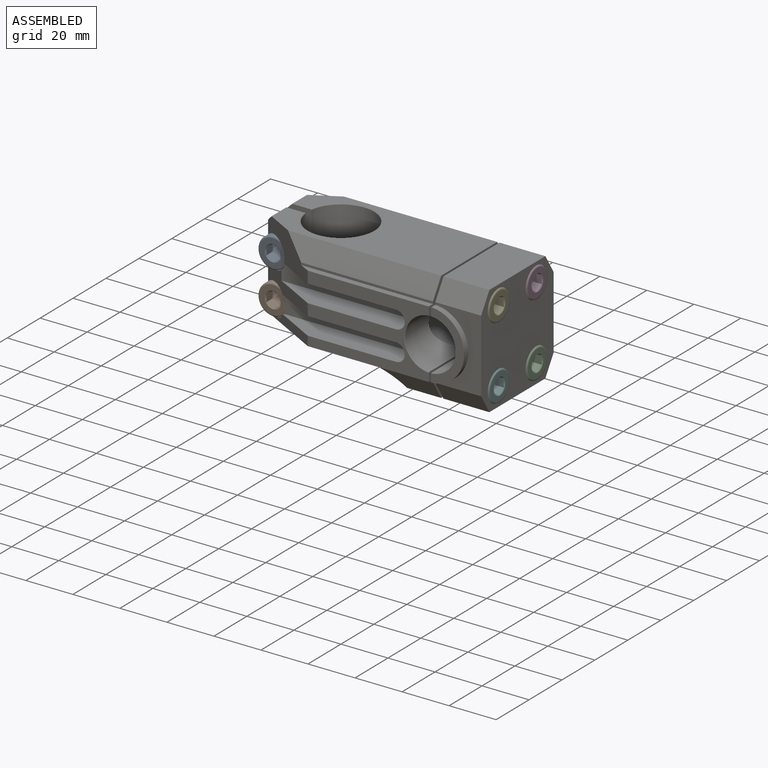
[diagram: assembled view]
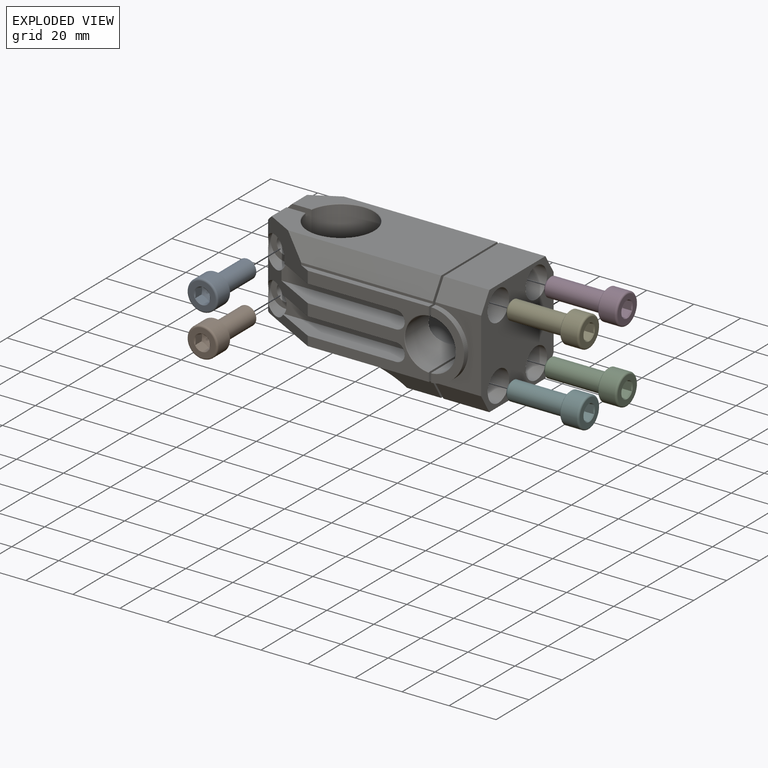
[diagram: exploded view]
GUIDED TOUR — FREECAD ASSEMBLY "tutorial"

This assembly has 7 components, labeled P0..P6 below (a component is one placed body or linked part; the same part can appear more than once), held together by 6 modeled joints. A joint is a constraint between two components; its type names the relative motion it leaves free:
  FASTENED — locks the two components together rigidly (no relative motion).
Axis/direction vectors are unit vectors and 'through' points are millimeter coordinates, both in the assembly's world frame.

MATES
  1. FASTENED [Fixed] "Joint": P2 <-> P6, direction (1.000, 0.000, 0.000) through (67.50, 11.50, -15.50) mm
  2. FASTENED [Fixed] "Joint001": P3 <-> P6, direction (1.000, 0.000, 0.000) through (67.50, 11.50, 15.50) mm
  3. FASTENED [Fixed] "Joint002": P4 <-> P6, direction (1.000, 0.000, 0.000) through (67.50, -11.50, 15.50) mm
  4. FASTENED [Fixed] "Joint003": P5 <-> P6, direction (1.000, 0.000, 0.000) through (67.50, -11.50, -15.50) mm
  5. FASTENED [Fixed] "Joint004": P0 <-> P6, direction (0.000, -1.000, 0.000) through (-19.50, -5.50, 11.00) mm
  6. FASTENED [Fixed] "Joint005": P1 <-> P6, direction (0.000, -1.000, 0.000) through (-19.50, -5.50, -7.00) mm

ASSEMBLY ORDER
  1. P6 — the base component [order heuristic]
  2. P0 [order heuristic]
  3. P1 [order heuristic]
  4. P2 [order heuristic]
  5. P3 [order heuristic]
  6. P4 [order heuristic]
  7. P5 [order heuristic]
Order-tag legend:
  [order heuristic] — this assembly is geometrically interlocked (no collision-free removal order exists), so components are listed in mate-graph order; insertion feasibility is not verified.

Of the 7 components, 1 carries a construction recipe — the FreeCAD feature program (sketches with constraints, then the solid features that consume them) that regenerates the part from scratch, quoted from this document or from the linked companion document it references; the rest are supplied as boundary geometry only. The tour below walks the components in assembly order: each is shown spotlighted twice — in the assembled view, then in the exploded view, where a leader line traces a displaced component back to its assembled socket (components that stay in place when exploded have no leader line; saturated green if recipe-attached, orange if geometry-only; every other component desaturated gray) — followed by its recipe or geometry summary and the mates that hold it.
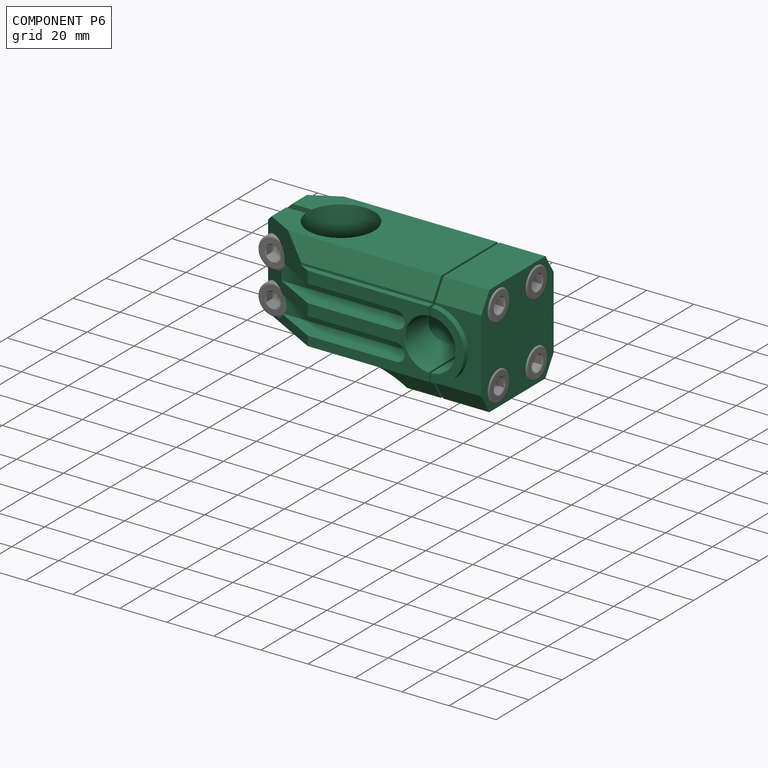
[diagram: component P6 — assembled]
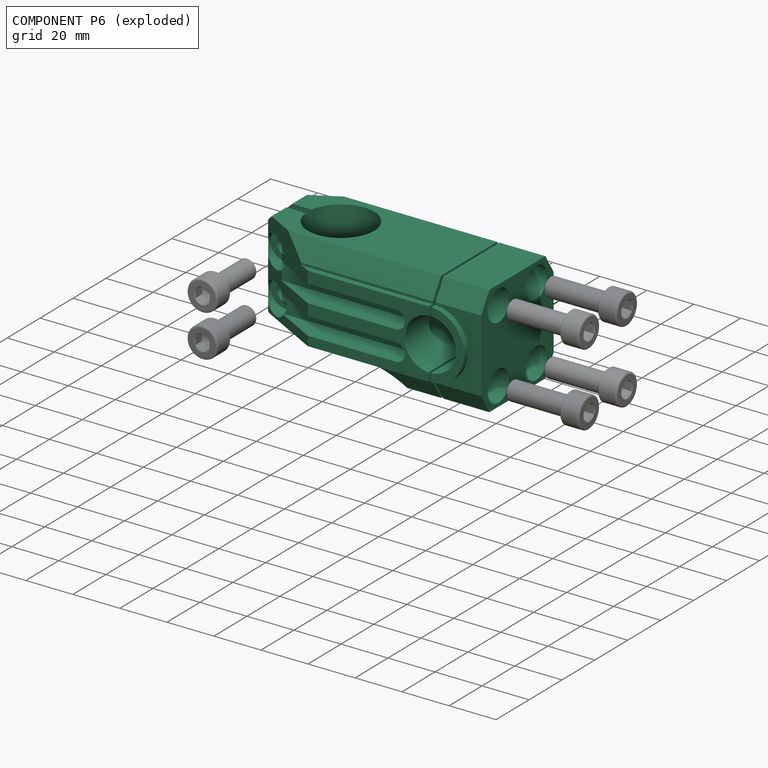
[diagram: component P6 — exploded]
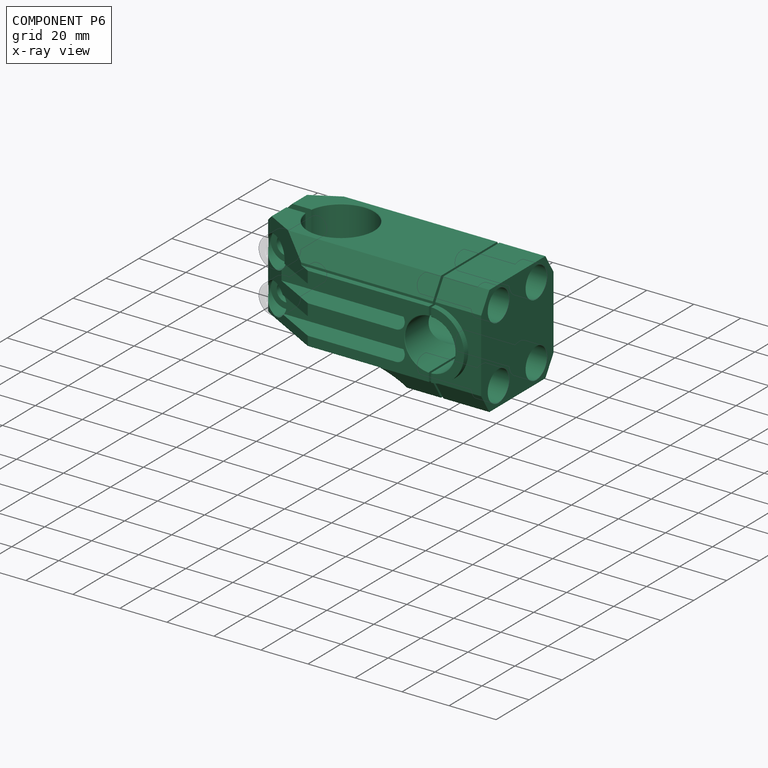
[diagram: component P6 — x-ray view]
COMPONENT P6 — recipe-attached ("Stem001", modeled in this document).
Held by: FASTENED mate "Joint" to P2; FASTENED mate "Joint001" to P3; FASTENED mate "Joint002" to P4; FASTENED mate "Joint003" to P5; FASTENED mate "Joint004" to P0; FASTENED mate "Joint005" to P1.
Construction recipe (the document's own serialized feature program — sketch geometry with constraints, then the solid features built on it; lengths are millimeters unless a unit is written):

FEATURE [Sketcher::SketchObject] Sketch
  ArcFitTolerance = 1e-06
  AttachmentSupport = -> [XZ_Plane]
  FullyConstrained = true
  MakeInternals = false
  MapMode = 5
  Placement = pos=(0,0,0) rot=(1,0,0;1.5708rad)
  expr: Constraints[18] = VarSet.Size
  expr: Constraints[19] = VarSet.Size + 20 mm
  sketch-geometry (7):
    g0: Circle CenterX=55 CenterY=0 CenterZ=0 NormalX=0 NormalY=0 NormalZ=1 AngleXU=0 Radius=10.75
    g1: LineSegment StartX=0 StartY=23.5 StartZ=0 EndX=75 EndY=23.5 EndZ=0
    g2: LineSegment StartX=75 StartY=23.5 StartZ=0 EndX=75 EndY=-23.5 EndZ=0
    g3: LineSegment StartX=75 StartY=-23.5 StartZ=0 EndX=0 EndY=-23.5 EndZ=0
    g4: LineSegment StartX=0 StartY=-23.5 StartZ=0 EndX=-27 EndY=-23.5 EndZ=0
    g5: LineSegment StartX=-27 StartY=-23.5 StartZ=0 EndX=-27 EndY=23.5 EndZ=0
    g6: LineSegment StartX=-27 StartY=23.5 StartZ=0 EndX=0 EndY=23.5 EndZ=0
  constraints (20):
    c: Diameter(g0) = 21.5
    c: PointOnObject(g0,g-1)
    c: PointOnObject(g1,g-2)
    c: Horizontal(g1)
    c: Coincident(g1,g2)
    c: Coincident(g2,g3)
    c: PointOnObject(g3,g-2)
    c: Horizontal(g3)
    c: Coincident(g3,g4)
    c: Horizontal(g4)
    c: Coincident(g4,g5)
    c: Vertical(g5)
    c: Coincident(g5,g6)
    c: Coincident(g6,g1)
    c: Horizontal(g6)
    c: Symmetric(g1,g2,g-1)
    c: DistanceY(g2,g2) = 47
    c: DistanceX(g6,g6) = 27
    c: DistanceX(g-1,g0) = 55
    c: Distance(g-2,g2) = 75
FEATURE [PartDesign::Pad] Pad
  Direction = (0,-1,2e-16)
  Length = 22
  Length2 = 10
  Placement = pos=(0,0,0) rot=(1,0,0;1.5708rad)
  Profile = -> Sketch
  ReferenceAxis = -> Sketch [N_Axis]
  Refine = true
  Suppressed = false
  Type = 0
FEATURE [PartDesign::Chamfer] Chamfer
  Angle = 45
  Base = -> Pad [Edge14,Edge15]
  BaseFeature = -> Pad
  ChamferType = 1
  FlipDirection = false
  Placement = pos=(0,0,0) rot=(1,0,0;1.5708rad)
  Refine = true
  Size = 8
  Size2 = 5
  SupportTransform = false
  Suppressed = false
  UseAllEdges = false
FEATURE [Sketcher::SketchObject] Sketch001
  ArcFitTolerance = 1e-06
  AttachmentSupport = -> [Chamfer]
  ExternalGeometry = -> [Chamfer]
  FullyConstrained = true
  MakeInternals = false
  MapMode = 5
  Placement = pos=(0,-22,0) rot=(1,0,0;1.5708rad)
  sketch-geometry (5):
    g0: ArcOfCircle CenterX=55 CenterY=4.9e-15 CenterZ=0 NormalX=0 NormalY=0 NormalZ=1 AngleXU=0 Radius=14.5 StartAngle=4.71239 EndAngle=7.85398
    g1: LineSegment StartX=55 StartY=14.5 StartZ=0 EndX=-27 EndY=14.5 EndZ=0
    g2: LineSegment StartX=55 StartY=-14.5 StartZ=0 EndX=-27 EndY=-14.5 EndZ=0
    g3: LineSegment StartX=-27 StartY=14.5 StartZ=0 EndX=-27 EndY=-14.5 EndZ=0
    g4: Circle CenterX=55 CenterY=4.9e-15 CenterZ=0 NormalX=0 NormalY=0 NormalZ=1 AngleXU=0 Radius=10.75
  constraints (14):
    c: Coincident(g0,g-4)
    c: Vertical(g0,g0)
    c: Vertical(g0,g0)
    c: Radius(g0) = 14.5
    c: Coincident(g1,g0)
    c: PointOnObject(g1,g-3)
    c: Horizontal(g1)
    c: Coincident(g2,g0)
    c: PointOnObject(g2,g-3)
    c: Horizontal(g2)
    c: Coincident(g3,g1)
    c: Coincident(g3,g2)
    c: Coincident(g4,g0)
    c: Equal(g-4,g4)
FEATURE [PartDesign::Pad] Pad001
  BaseFeature = -> Chamfer
  Direction = (0,-1,2e-16)
  Length = 2.5
  Length2 = 10
  Placement = pos=(0,0,0) rot=(1,0,0;1.5708rad)
  Profile = -> Sketch001
  ReferenceAxis = -> Sketch001 [N_Axis]
  Refine = true
  Suppressed = false
  Type = 0
FEATURE [Sketcher::SketchObject] Sketch002
  ArcFitTolerance = 1e-06
  AttachmentSupport = -> [Pad001]
  ExternalGeometry = -> [Pad001]
  FullyConstrained = true
  MakeInternals = false
  MapMode = 5
  Placement = pos=(0,-24.5,6e-15) rot=(1,0,0;1.5708rad)
  expr: Constraints[16] = VarSet.Size - 14.5 mm
  sketch-geometry (8):
    g0: LineSegment StartX=-27 StartY=9.5 StartZ=0 EndX=-27 EndY=2 EndZ=0
    g1: LineSegment StartX=-27 StartY=2 StartZ=0 EndX=40.5 EndY=2 EndZ=0
    g2: LineSegment StartX=40.5 StartY=9.5 StartZ=0 EndX=-27 EndY=9.5 EndZ=0
    g3: LineSegment StartX=-27 StartY=-3 StartZ=0 EndX=-27 EndY=-10.5 EndZ=0
    g4: LineSegment StartX=-27 StartY=-10.5 StartZ=0 EndX=40.5 EndY=-10.5 EndZ=0
    g5: LineSegment StartX=40.5 StartY=-3 StartZ=0 EndX=-27 EndY=-3 EndZ=0
    g6: ArcOfCircle CenterX=40.5 CenterY=5.75 CenterZ=0 NormalX=0 NormalY=0 NormalZ=1 AngleXU=0 Radius=3.75 StartAngle=4.71239 EndAngle=7.85398
    g7: ArcOfCircle CenterX=40.5 CenterY=-6.75 CenterZ=0 NormalX=0 NormalY=0 NormalZ=1 AngleXU=0 Radius=3.75 StartAngle=4.71239 EndAngle=7.85398
  constraints (23):
    c: Coincident(g0,g1)
    c: Coincident(g2,g0)
    c: Vertical(g0)
    c: Horizontal(g1)
    c: Horizontal(g2)
    c: PointOnObject(g0,g-3)
    c: Coincident(g3,g4)
    c: Coincident(g5,g3)
    c: Vertical(g3)
    c: Horizontal(g4)
    c: Horizontal(g5)
    c: PointOnObject(g3,g-3)
    c: Tangent(g6,g2) = -1.5708
    c: Tangent(g6,g1) = -1.5708
    c: Distance(g1,g2) = 7.5
    c: Distance(g-1,g1) = 2
    c: DistanceX(g-1,g6) = 40.5
    c: Vertical(g6,g5)
    c: Vertical(g5,g4)
    c: Equal(g3,g0)
    c: Distance(g-1,g5) = 3
    c: Coincident(g7,g4)
    c: Tangent(g7,g5) = -1.5708
FEATURE [PartDesign::Pocket] Pocket
  BaseFeature = -> Pad001
  Direction = (0,1,-2e-16)
  Length = 10
  Length2 = 5
  Placement = pos=(0,0,0) rot=(1,0,0;1.5708rad)
  Profile = -> Sketch002
  ReferenceAxis = -> Sketch002 [N_Axis]
  Refine = true
  Suppressed = false
  Type = 0
FEATURE [Sketcher::SketchObject] Sketch003
  ArcFitTolerance = 1e-06
  AttachmentSupport = -> [Pocket]
  ExternalGeometry = -> [Pocket]
  FullyConstrained = true
  MakeInternals = false
  MapMode = 5
  Placement = pos=(0,-22,0) rot=(1,0,0;1.5708rad)
  expr: Constraints[7] = VarSet.Size - 15 mm
  sketch-geometry (5):
    g0: LineSegment StartX=-27 StartY=-23.5 StartZ=0 EndX=-27 EndY=-14.5 EndZ=0
    g1: LineSegment StartX=-27 StartY=-23.5 StartZ=0 EndX=0 EndY=-23.5 EndZ=0
    g2: LineSegment StartX=0 StartY=-23.5 StartZ=0 EndX=40 EndY=-23.5 EndZ=0
    g3: LineSegment StartX=-27 StartY=-14.5 StartZ=0 EndX=23.2967 EndY=-14.5 EndZ=0
    g4: ArcOfCircle CenterX=23.2967 CenterY=-34.5 CenterZ=0 NormalX=0 NormalY=0 NormalZ=1 AngleXU=0 Radius=20 StartAngle=0.582364 EndAngle=1.5708
  constraints (13):
    c: Coincident(g-4,g0)
    c: Coincident(g0,g-5)
    c: Coincident(g0,g1)
    c: PointOnObject(g1,g-4)
    c: Coincident(g1,g2)
    c: PointOnObject(g2,g-4)
    c: PointOnObject(g1,g-2)
    c: DistanceX(g2,g2) = 40
    c: Coincident(g3,g0)
    c: PointOnObject(g3,g-5)
    c: Coincident(g4,g2)
    c: Tangent(g4,g3) = 1.5708
    c: Radius(g4) = 20
FEATURE [PartDesign::Pocket] Pocket001
  BaseFeature = -> Pocket
  Direction = (0,1,-2e-16)
  Length = 5
  Length2 = 5
  Placement = pos=(0,0,0) rot=(1,0,0;1.5708rad)
  Profile = -> Sketch003
  ReferenceAxis = -> Sketch003 [N_Axis]
  Refine = true
  Suppressed = false
  Type = 1
FEATURE [Sketcher::SketchObject] Sketch004
  ArcFitTolerance = 1e-06
  AttachmentSupport = -> [Pocket001]
  ExternalGeometry = -> [Pocket001]
  FullyConstrained = true
  MakeInternals = false
  MapMode = 5
  Placement = pos=(0,6.2e-15,23.5) rot=(0,0,1;3.14159rad)
  sketch-geometry (10):
    g0: LineSegment StartX=-3 StartY=24.5 StartZ=0 EndX=27 EndY=24.5 EndZ=0
    g1: LineSegment StartX=27 StartY=24.5 StartZ=0 EndX=27 EndY=1.75 EndZ=0
    g2: LineSegment StartX=-3 StartY=24.5 StartZ=0 EndX=23 EndY=10.2 EndZ=0
    g3: LineSegment [constr] StartX=23 StartY=10.2 StartZ=0 EndX=27 EndY=8 EndZ=0
    g4: Circle [constr] CenterX=23 CenterY=10.2 CenterZ=0 NormalX=0 NormalY=0 NormalZ=1 AngleXU=0 Radius=1
    g5: Circle [constr] CenterX=27 CenterY=8 CenterZ=0 NormalX=0 NormalY=0 NormalZ=1 AngleXU=0 Radius=1
    g6: Circle [constr] CenterX=27 CenterY=1.75 CenterZ=0 NormalX=0 NormalY=0 NormalZ=1 AngleXU=0 Radius=1
    g7: BSplineCurve PolesCount=3 KnotsCount=2 Degree=2 IsPeriodic=0
    g8: GeomPoint [constr] X=23 Y=10.2 Z=0
    g9: GeomPoint [constr] X=27 Y=1.75 Z=0
  constraints (23):
    c: PointOnObject(g0,g-3)
    c: Coincident(g0,g-4)
    c: Coincident(g0,g1)
    c: PointOnObject(g1,g-6)
    c: DistanceY(g-1,g1) = 1.75
    c: DistanceX(g0,g-1) = 3
    c: Coincident(g0,g2)
    c: Coincident(g2,g3)
    c: PointOnObject(g3,g1)
    c: Parallel(g2,g3)
    c: DistanceX(g-1,g2) = 23
    c: DistanceY(g-1,g3) = 8
    c: Weight(g4) = 1
    c: Equal(g4,g5)
    c: Equal(g4,g6)
    c: InternalAlignment(g4,g7)
    c: InternalAlignment(g5,g7)
    c: InternalAlignment(g6,g7)
    c: InternalAlignment(g8,g7)
    c: InternalAlignment(g9,g7)
    c: Coincident(g4,g2)
    c: Coincident(g6,g1)
    c: Coincident(g5,g3)
FEATURE [PartDesign::Pocket] Pocket002
  BaseFeature = -> Pocket001
  Direction = (0,0,-1)
  Length = 5
  Length2 = 5
  Placement = pos=(0,0,0) rot=(1,0,0;1.5708rad)
  Profile = -> Sketch004
  ReferenceAxis = -> Sketch004 [N_Axis]
  Refine = true
  Suppressed = false
  Type = 1
FEATURE [PartDesign::Mirrored] Mirrored
  BaseFeature = -> Pocket002
  MirrorPlane = -> XZ_Plane
  Placement = pos=(0,0,0) rot=(1,0,0;1.5708rad)
  Refine = true
  Suppressed = false
  TransformMode = 1
FEATURE [Sketcher::SketchObject] Sketch005
  ArcFitTolerance = 1e-06
  AttachmentSupport = -> [Mirrored]
  ExternalGeometry = -> [Mirrored]
  FullyConstrained = true
  MakeInternals = false
  MapMode = 5
  Placement = pos=(0,-5.2e-15,23.5) rot=(0,0,1;3.14159rad)
  sketch-geometry (4):
    g0: ArcOfCircle CenterX=0 CenterY=0 CenterZ=0 NormalX=0 NormalY=0 NormalZ=1 AngleXU=0 Radius=14 StartAngle=0.125328 EndAngle=6.15786
    g1: LineSegment StartX=27 StartY=1.75 StartZ=0 EndX=13.8902 EndY=1.75 EndZ=0
    g2: LineSegment StartX=27 StartY=-1.75 StartZ=0 EndX=13.8902 EndY=-1.75 EndZ=0
    g3: LineSegment StartX=27 StartY=1.75 StartZ=0 EndX=27 EndY=-1.75 EndZ=0
  constraints (10):
    c: Coincident(g0,g-1)
    c: Diameter(g0) = 28
    c: Coincident(g1,g-3)
    c: Horizontal(g1)
    c: Coincident(g2,g-3)
    c: Horizontal(g2)
    c: Coincident(g3,g1)
    c: Coincident(g3,g2)
    c: Coincident(g0,g2)
    c: Coincident(g0,g1)
FEATURE [PartDesign::Pocket] Pocket003
  BaseFeature = -> Mirrored
  Direction = (0,0,-1)
  Length = 5
  Length2 = 5
  Placement = pos=(0,0,0) rot=(1,0,0;1.5708rad)
  Profile = -> Sketch005
  ReferenceAxis = -> Sketch005 [N_Axis]
  Refine = true
  Suppressed = false
  Type = 1
FEATURE [Sketcher::SketchObject] Sketch006
  ArcFitTolerance = 1e-06
  AttachmentSupport = -> [XZ_Plane]
  ExternalGeometry = -> [Pocket003]
  FullyConstrained = true
  MakeInternals = false
  MapMode = 5
  Placement = pos=(0,0,0) rot=(1,0,0;1.5708rad)
  sketch-geometry (3):
    g0: LineSegment StartX=-27 StartY=18.5 StartZ=0 EndX=-27 EndY=23.5 EndZ=0
    g1: LineSegment StartX=-27 StartY=23.5 StartZ=0 EndX=-22 EndY=23.5 EndZ=0
    g2: LineSegment StartX=-22 StartY=23.5 StartZ=0 EndX=-27 EndY=18.5 EndZ=0
  constraints (8):
    c: PointOnObject(g0,g-3)
    c: Coincident(g0,g-4)
    c: Coincident(g0,g1)
    c: PointOnObject(g1,g-4)
    c: Coincident(g1,g2)
    c: Coincident(g2,g0)
    c: DistanceX(g1,g1) = 5
    c: DistanceY(g0,g0) = 5
FEATURE [PartDesign::Pocket] Pocket004
  BaseFeature = -> Pocket003
  Direction = (0,1,-2e-16)
  Length = 5
  Length2 = 5
  Midplane = true
  Placement = pos=(0,0,0) rot=(1,0,0;1.5708rad)
  Profile = -> Sketch006
  ReferenceAxis = -> Sketch006 [N_Axis]
  Refine = true
  Suppressed = false
  Type = 1
FEATURE [Sketcher::SketchObject] Sketch007
  ArcFitTolerance = 1e-06
  AttachmentSupport = -> [Pocket004]
  FullyConstrained = true
  MakeInternals = false
  MapMode = 5
  Placement = pos=(75,0,0) rot=(0.707107,0,0.707107;3.14159rad)
  sketch-geometry (4):
    g0: Circle CenterX=15.5 CenterY=11.5 CenterZ=0 NormalX=0 NormalY=0 NormalZ=1 AngleXU=0 Radius=6.5
    g1: Circle CenterX=15.5 CenterY=-11.5 CenterZ=0 NormalX=0 NormalY=0 NormalZ=1 AngleXU=0 Radius=6.5
    g2: Circle CenterX=-15.5 CenterY=-11.5 CenterZ=0 NormalX=0 NormalY=0 NormalZ=1 AngleXU=0 Radius=6.5
    g3: Circle CenterX=-15.5 CenterY=11.5 CenterZ=0 NormalX=0 NormalY=0 NormalZ=1 AngleXU=0 Radius=6.5
  constraints (10):
    c: Vertical(g3,g2)
    c: Horizontal(g3,g0)
    c: Symmetric(g2,g1,g-2)
    c: Symmetric(g0,g1,g-1)
    c: DistanceY(g1,g0) = 23
    c: DistanceX(g2,g1) = 31
    c: Equal(g3,g0)
    c: Equal(g0,g1)
    c: Equal(g1,g2)
    c: Diameter(g1) = 13
FEATURE [PartDesign::Pocket] Pocket005
  BaseFeature = -> Pocket004
  Direction = (-1,0,2e-16)
  Length = 8.5
  Length2 = 5
  Placement = pos=(0,0,0) rot=(1,0,0;1.5708rad)
  Profile = -> Sketch007
  ReferenceAxis = -> Sketch007 [N_Axis]
  Refine = true
  Suppressed = false
  Type = 0
FEATURE [PartDesign::Hole] Hole
  BaseFeature = -> Pocket005
  CustomThreadClearance = 0
  Depth = 13
  DepthType = 0
  Diameter = 6
  DrillForDepth = false
  DrillPoint = 1
  DrillPointAngle = 118
  HoleCutCountersinkAngle = 90
  HoleCutCustomValues = false
  HoleCutDepth = 0
  HoleCutDiameter = 6.1
  HoleCutType = 0
  ModelThread = false
  Placement = pos=(0,0,0) rot=(1,0,0;1.5708rad)
  Profile = -> Pocket005 [Face49,Face47,Face46,Face48]
  Refine = true
  Suppressed = false
  Tapered = false
  TaperedAngle = 90
  ThreadClass = 0
  ThreadDepth = 13
  ThreadDepthType = 0
  ThreadDirection = 0
  ThreadFit = 0
  ThreadSize = 0
  ThreadType = 0
  Threaded = false
  UseCustomThreadClearance = false
FEATURE [Sketcher::SketchObject] Sketch008
  ArcFitTolerance = 1e-06
  AttachmentSupport = -> [Hole]
  FullyConstrained = true
  MakeInternals = false
  MapMode = 5
  Placement = pos=(0,-14.5,4.8e-15) rot=(1,0,0;1.5708rad)
  sketch-geometry (2):
    g0: Circle CenterX=-19.5 CenterY=11 CenterZ=0 NormalX=0 NormalY=0 NormalZ=1 AngleXU=0 Radius=6.5
    g1: Circle CenterX=-19.5 CenterY=-7 CenterZ=0 NormalX=0 NormalY=0 NormalZ=1 AngleXU=0 Radius=6.5
  constraints (6):
    c: Vertical(g1,g0)
    c: Equal(g0,g1)
    c: DistanceY(g1,g-1) = 7
    c: DistanceY(g-1,g0) = 11
    c: DistanceX(g0,g-1) = 19.5
    c: Diameter(g0) = 13
FEATURE [PartDesign::Pocket] Pocket006
  BaseFeature = -> Hole
  Direction = (0,1,-2e-16)
  Length = 9
  Length2 = 7
  Placement = pos=(0,0,0) rot=(1,0,0;1.5708rad)
  Profile = -> Sketch008
  ReferenceAxis = -> Sketch008 [N_Axis]
  Refine = true
  Suppressed = false
  Type = 4
FEATURE [PartDesign::Hole] Hole001
  BaseFeature = -> Pocket006
  CustomThreadClearance = 0
  Depth = 25
  DepthType = 0
  Diameter = 8
  DrillForDepth = false
  DrillPoint = 1
  DrillPointAngle = 118
  HoleCutCountersinkAngle = 90
  HoleCutCustomValues = false
  HoleCutDepth = 0
  HoleCutDiameter = 6.1
  HoleCutType = 0
  ModelThread = false
  Placement = pos=(0,0,0) rot=(1,0,0;1.5708rad)
  Profile = -> Pocket006 [Face33,Face55]
  Refine = true
  Suppressed = false
  Tapered = false
  TaperedAngle = 90
  ThreadClass = 0
  ThreadDepth = 25
  ThreadDepthType = 0
  ThreadDirection = 0
  ThreadFit = 0
  ThreadSize = 0
  ThreadType = 0
  Threaded = false
  UseCustomThreadClearance = false
FEATURE [Sketcher::SketchObject] Sketch009
  ArcFitTolerance = 1e-06
  AttachmentSupport = -> [XZ_Plane]
  ExternalGeometry = -> [Hole001]
  FullyConstrained = true
  MakeInternals = false
  MapMode = 5
  Placement = pos=(0,0,0) rot=(1,0,0;1.5708rad)
  expr: Constraints[11] = VarSet.Size + 0.5 mm
  expr: Constraints[9] = VarSet.Size - 0.5 mm
  sketch-geometry (4):
    g0: LineSegment StartX=54.5 StartY=23.5 StartZ=0 EndX=54.5 EndY=-23.5 EndZ=0
    g1: LineSegment StartX=55.5 StartY=23.5 StartZ=0 EndX=54.5 EndY=23.5 EndZ=0
    g2: LineSegment StartX=54.5 StartY=-23.5 StartZ=0 EndX=55.5 EndY=-23.5 EndZ=0
    g3: LineSegment StartX=55.5 StartY=-23.5 StartZ=0 EndX=55.5 EndY=23.5 EndZ=0
  constraints (12):
    c: Coincident(g1,g0)
    c: Vertical(g0)
    c: Horizontal(g1)
    c: PointOnObject(g0,g-3)
    c: Coincident(g2,g0)
    c: PointOnObject(g2,g-4)
    c: Horizontal(g2)
    c: Coincident(g3,g2)
    c: Coincident(g3,g1)
    c: DistanceX(g-1,g0) = 54.5
    c: Vertical(g1,g2)
    c: DistanceX(g-1,g2) = 55.5
FEATURE [PartDesign::Pocket] Pocket007
  BaseFeature = -> Hole001
  Direction = (0,1,-2e-16)
  Length = 5
  Length2 = 5
  Midplane = true
  Placement = pos=(0,0,0) rot=(1,0,0;1.5708rad)
  Profile = -> Sketch009
  ReferenceAxis = -> Sketch009 [N_Axis]
  Refine = true
  Suppressed = false
  Type = 1
FEATURE [Sketcher::SketchObject] Sketch010
  ArcFitTolerance = 1e-06
  AttachmentSupport = -> [YZ_Plane]
  FullyConstrained = true
  MakeInternals = false
  MapMode = 5
  Placement = pos=(0,0,0) rot=(0.57735,0.57735,0.57735;2.0944rad)
  sketch-geometry (1):
    g0: Circle CenterX=0 CenterY=0 CenterZ=0 NormalX=0 NormalY=0 NormalZ=1 AngleXU=0 Radius=10
  constraints (2):
    c: Diameter(g0) = 20
    c: Coincident(g0,g-1)
FEATURE [PartDesign::Pocket] Pocket008
  BaseFeature = -> Pocket007
  Direction = (-1,0,0)
  Length = 0
  Length2 = 5
  Placement = pos=(0,0,0) rot=(1,0,0;1.5708rad)
  Profile = -> Sketch010
  ReferenceAxis = -> Sketch010 [N_Axis]
  Refine = true
  Suppressed = false
  Type = 3
  UpToFace = -> Pocket007 [Face18]
FEATURE [PartDesign::Chamfer] Chamfer001
  Angle = 45
  Base = -> Pocket008 [Edge226,Edge16,Edge227,Edge50,Edge95,Edge222,Edge223]
  BaseFeature = -> Pocket008
  ChamferType = 0
  FlipDirection = false
  Placement = pos=(0,0,0) rot=(1,0,0;1.5708rad)
  Refine = true
  Size = 0.2
  Size2 = 1
  SupportTransform = false
  Suppressed = false
  UseAllEdges = false
FEATURE [PartDesign::Body] Body  label="Stem"
  AllowCompound = true
  Group = -> [Sketch,Pad,Chamfer,Sketch001,Pad001,Sketch002,Pocket,Sketch003,Pocket001,Sketch004,Pocket002,Mirrored,Sketch005,Pocket003,Sketch006,Pocket004,Sketch007,Pocket005,Hole,Sketch008,Pocket006,Hole001,Sketch009,Pocket007,Sketch010,Pocket008,Chamfer001]
  Origin = -> Origin
  Tip = -> Chamfer001
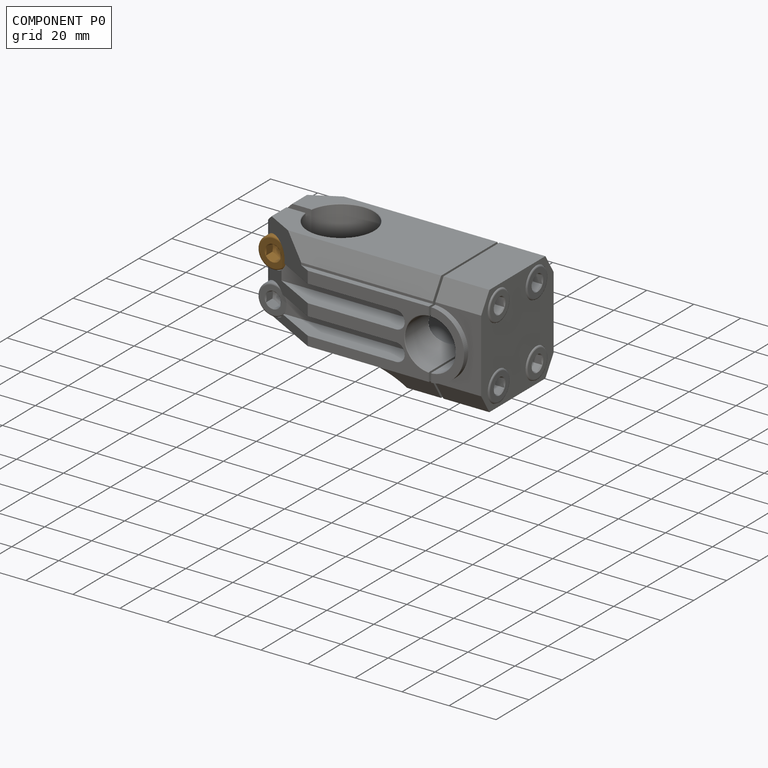
[diagram: component P0 — assembled]
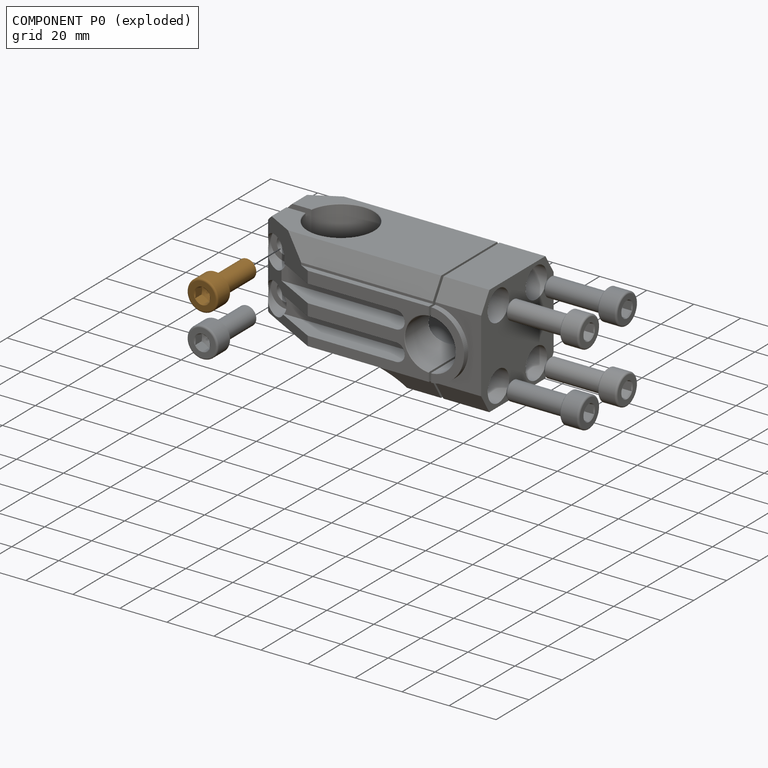
[diagram: component P0 — exploded]
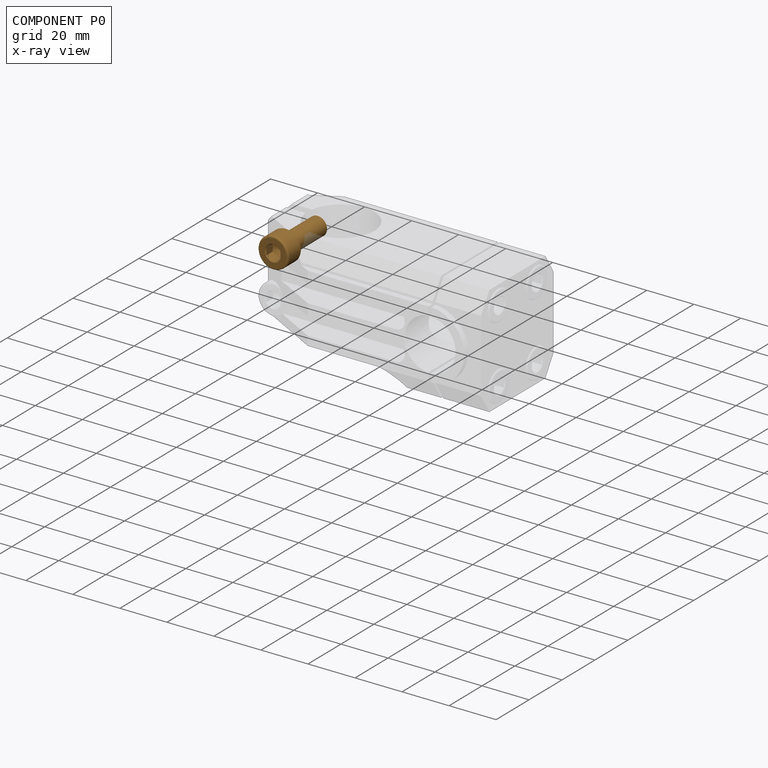
[diagram: component P0 — x-ray view]
COMPONENT P0 — geometry summary ("M8x15-Screw001"; no construction recipe available for this part):
  bounding box: 28.0 x 13.0 x 13.0 mm
  tessellated surface: 15,152 triangles
  volume: 1899 mm^3 (40% of its bounding box)
  symmetry: revolution-symmetric about the y axis through its bounding-box center; mirror-symmetric across its x mid-plane, z mid-plane
Held by: FASTENED mate "Joint004" to P6.
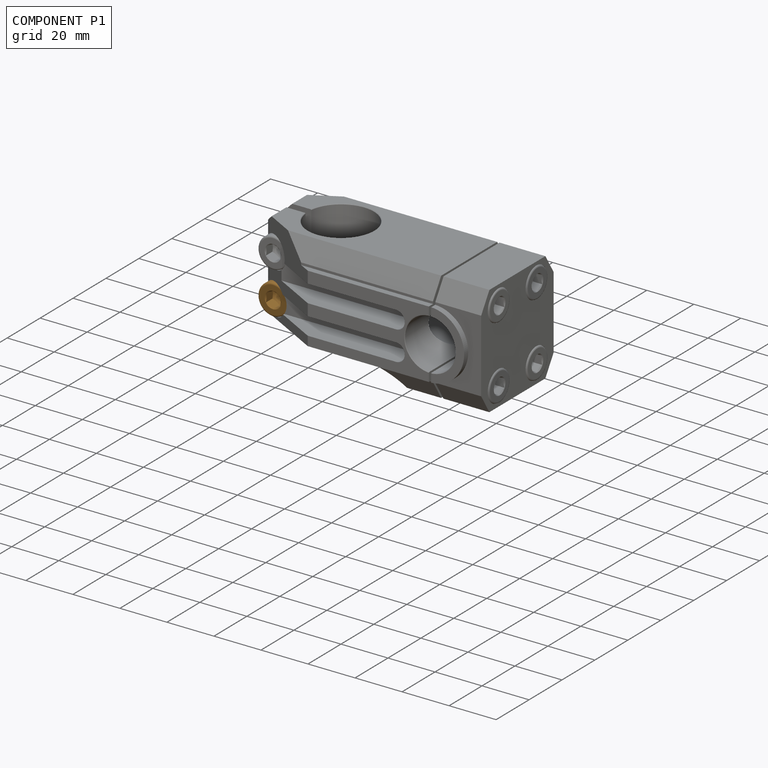
[diagram: component P1 — assembled]
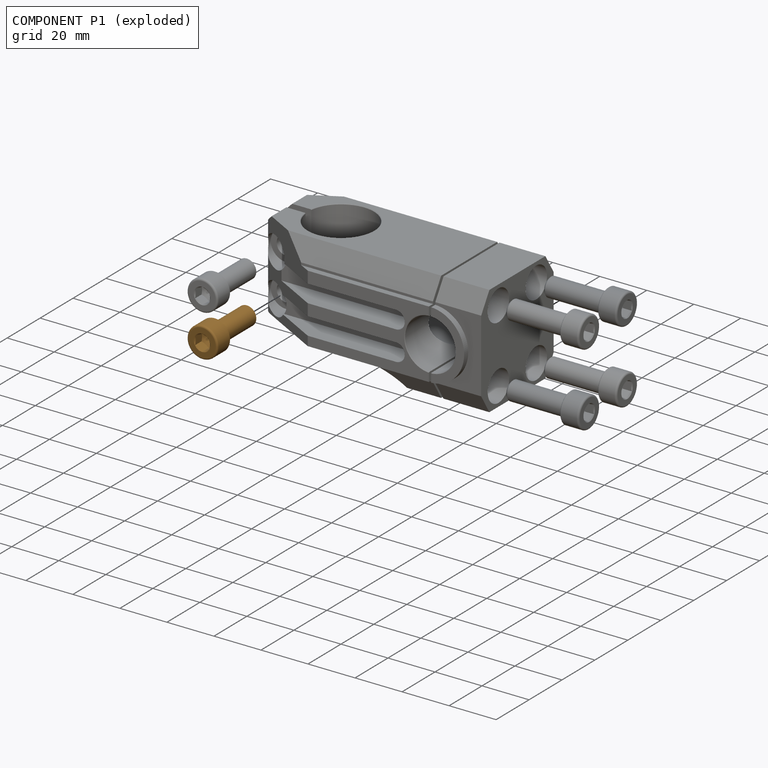
[diagram: component P1 — exploded]
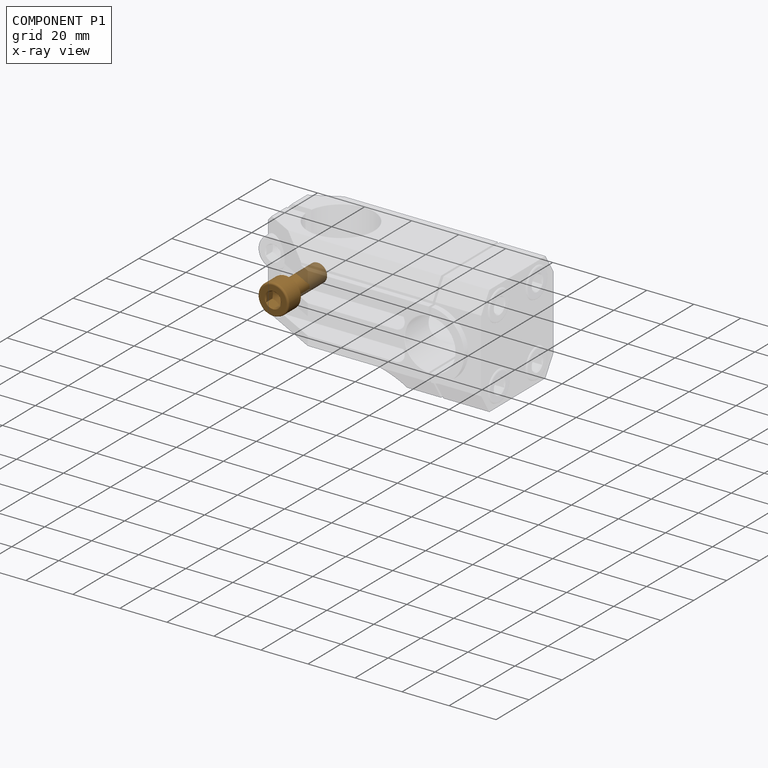
[diagram: component P1 — x-ray view]
COMPONENT P1 — geometry summary ("M8x15-Screw002"; no construction recipe available for this part):
  bounding box: 28.0 x 13.0 x 13.0 mm
  tessellated surface: 15,152 triangles
  volume: 1899 mm^3 (40% of its bounding box)
  symmetry: revolution-symmetric about the y axis through its bounding-box center; mirror-symmetric across its x mid-plane, z mid-plane
Held by: FASTENED mate "Joint005" to P6.
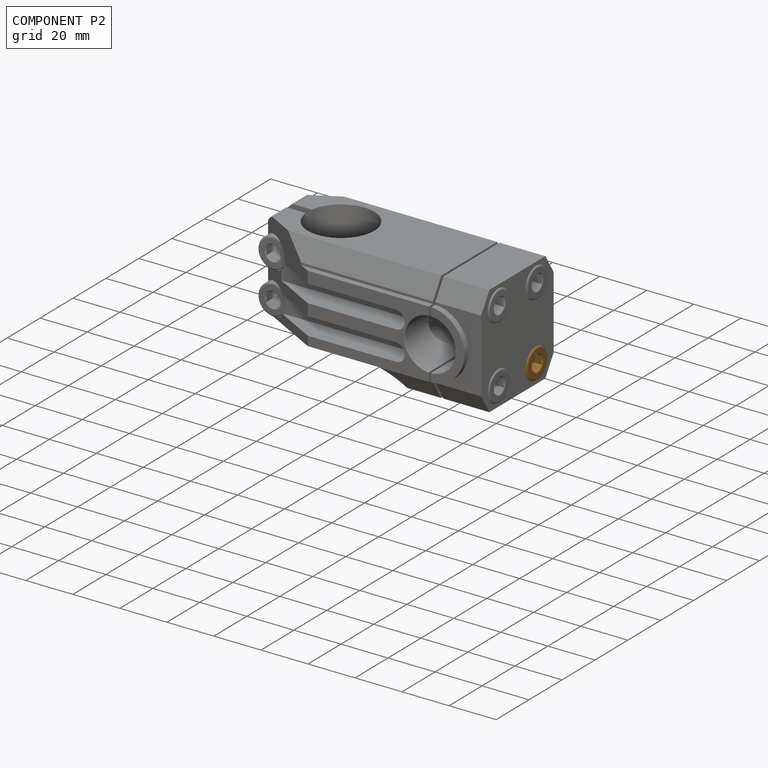
[diagram: component P2 — assembled]
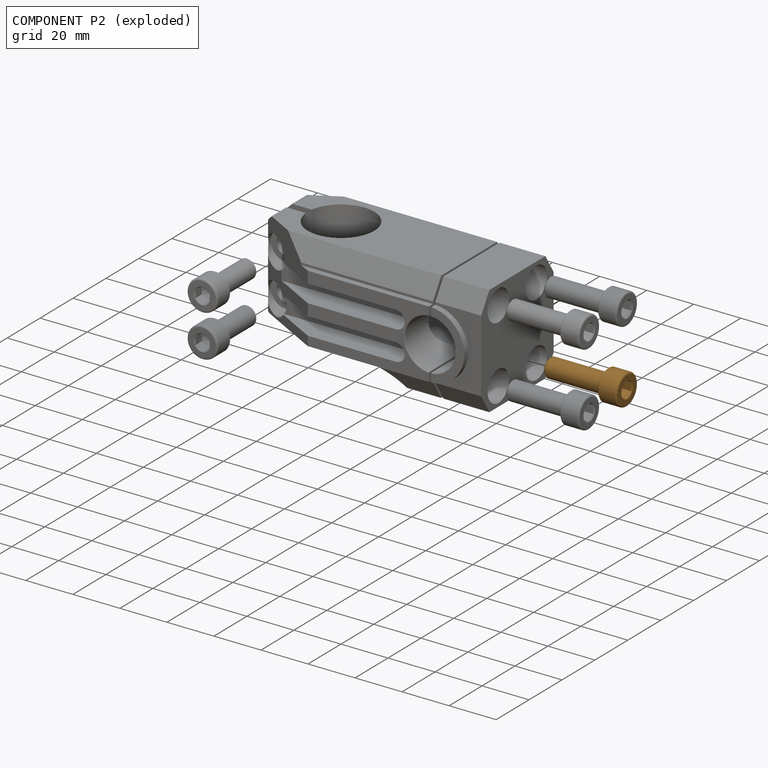
[diagram: component P2 — exploded]
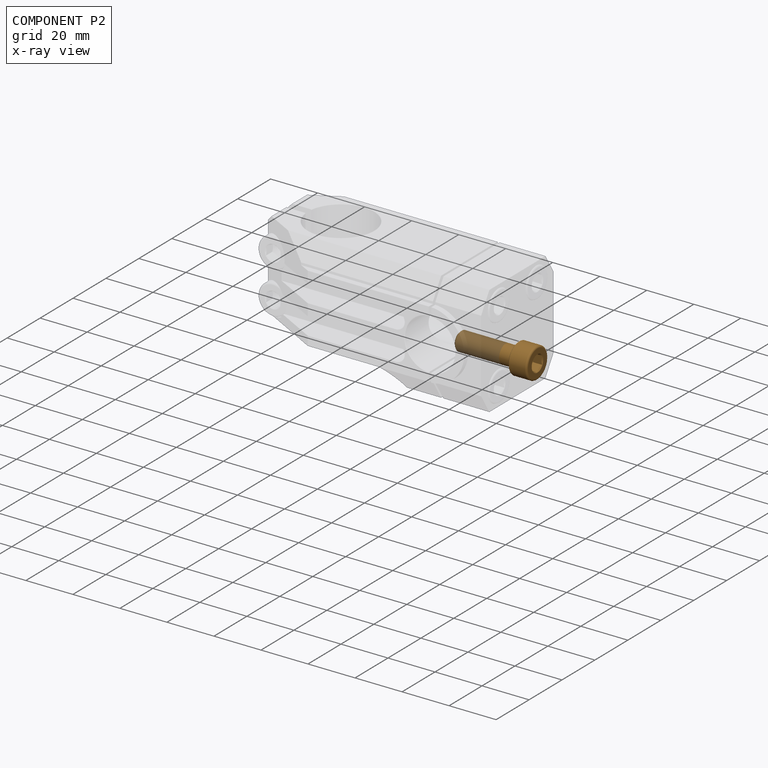
[diagram: component P2 — x-ray view]
COMPONENT P2 — geometry summary ("M8x25-Screw001"; no construction recipe available for this part):
  bounding box: 33.0 x 13.0 x 13.0 mm
  tessellated surface: 15,152 triangles
  volume: 2150 mm^3 (39% of its bounding box)
  symmetry: revolution-symmetric about the x axis through its bounding-box center; mirror-symmetric across its y mid-plane
Held by: FASTENED mate "Joint" to P6.
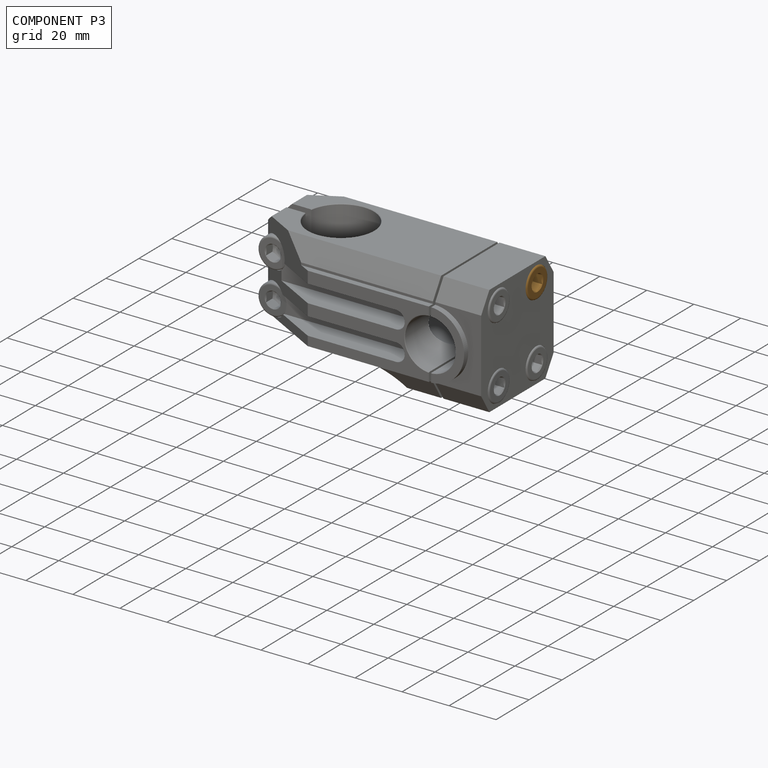
[diagram: component P3 — assembled]
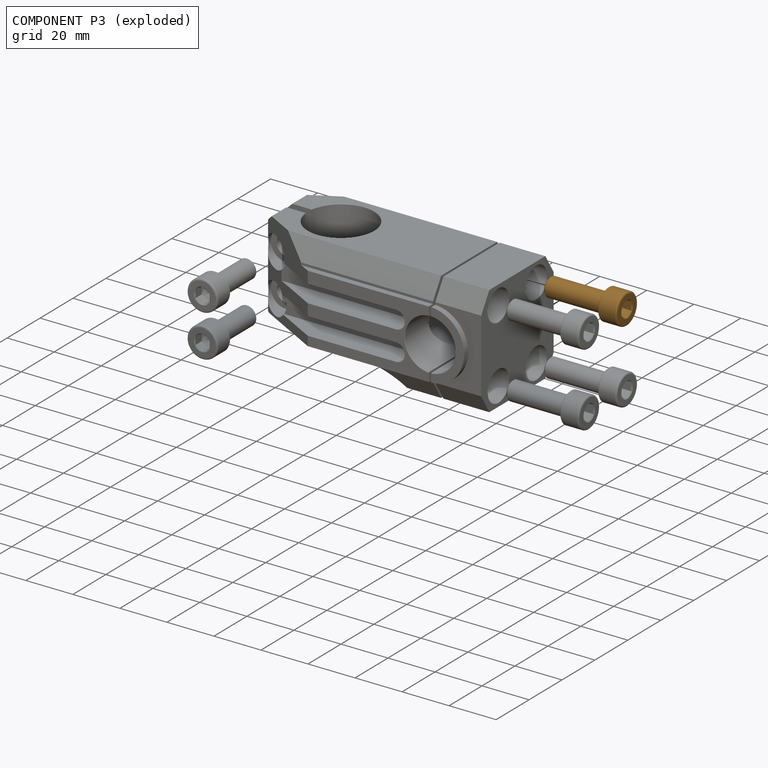
[diagram: component P3 — exploded]
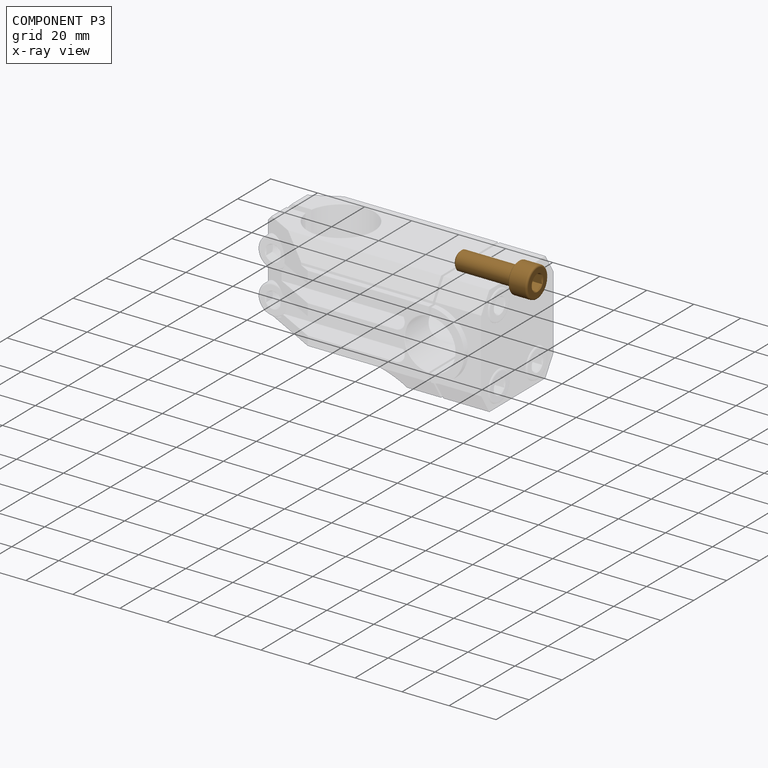
[diagram: component P3 — x-ray view]
COMPONENT P3 — geometry summary ("M8x25-Screw002"; no construction recipe available for this part):
  bounding box: 33.0 x 13.0 x 13.0 mm
  tessellated surface: 15,152 triangles
  volume: 2150 mm^3 (39% of its bounding box)
  symmetry: revolution-symmetric about the x axis through its bounding-box center; mirror-symmetric across its y mid-plane
Held by: FASTENED mate "Joint001" to P6.
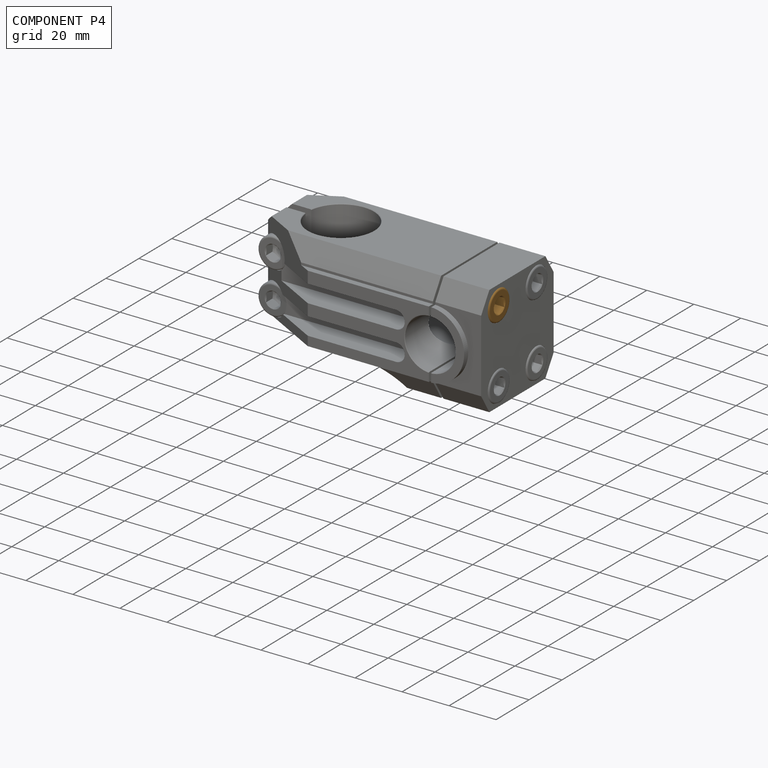
[diagram: component P4 — assembled]
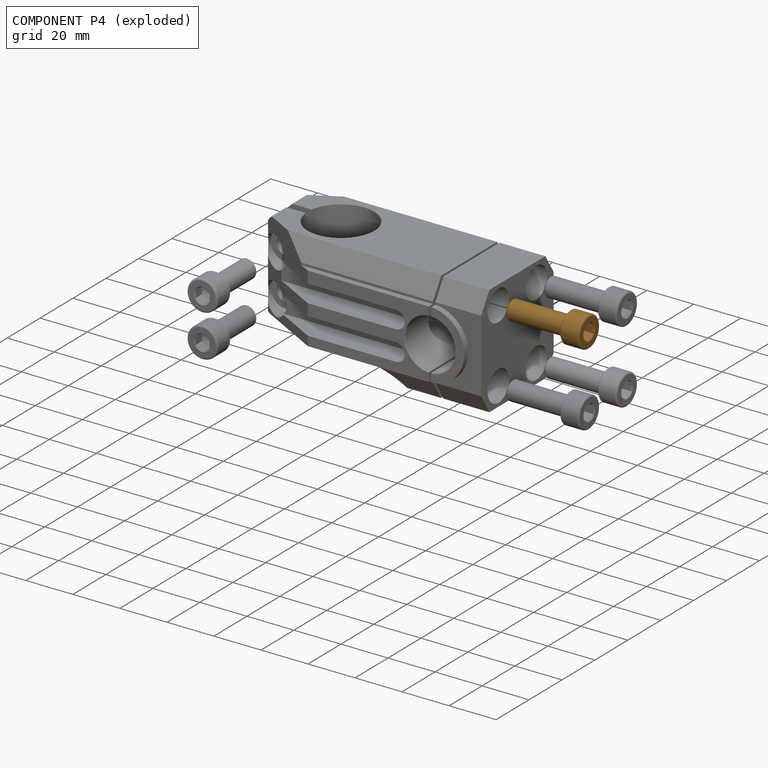
[diagram: component P4 — exploded]
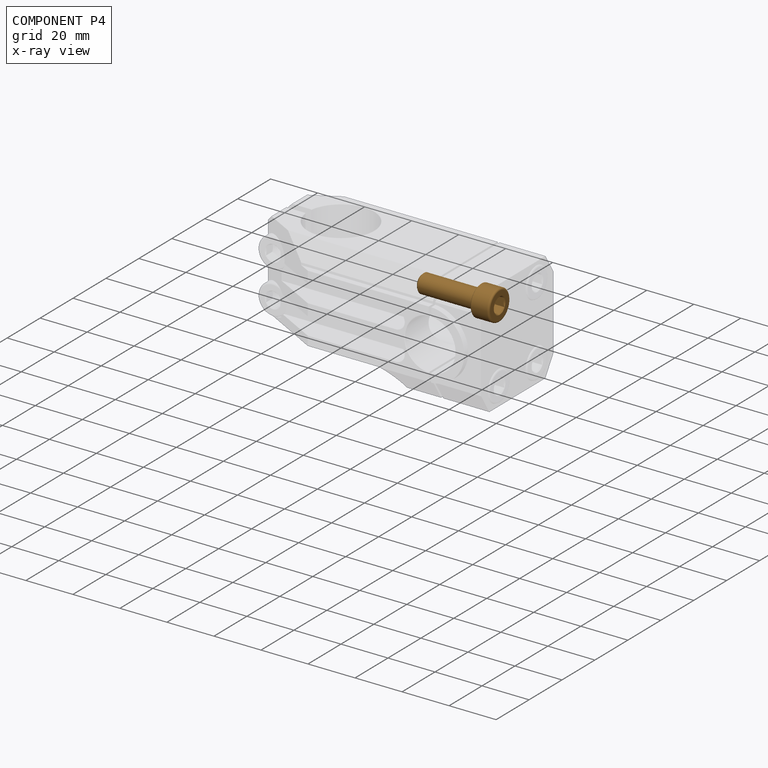
[diagram: component P4 — x-ray view]
COMPONENT P4 — geometry summary ("M8x25-Screw003"; no construction recipe available for this part):
  bounding box: 33.0 x 13.0 x 13.0 mm
  tessellated surface: 15,152 triangles
  volume: 2150 mm^3 (39% of its bounding box)
  symmetry: revolution-symmetric about the x axis through its bounding-box center; mirror-symmetric across its y mid-plane
Held by: FASTENED mate "Joint002" to P6.
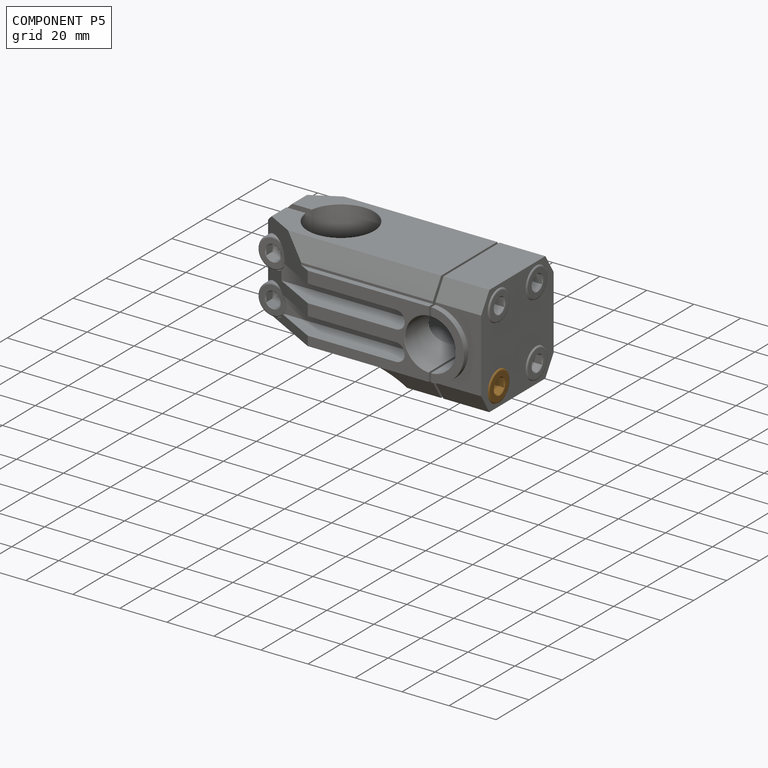
[diagram: component P5 — assembled]
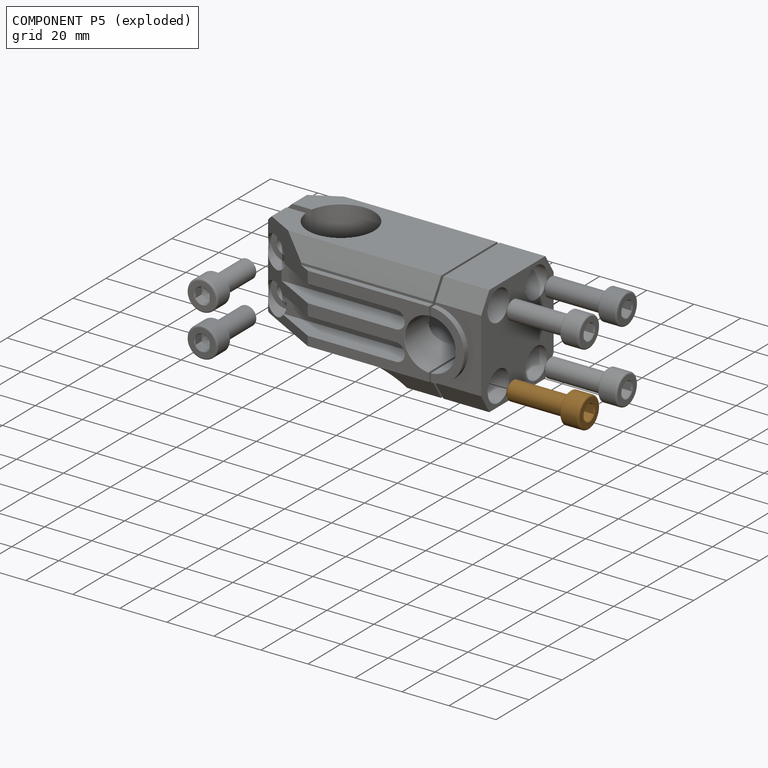
[diagram: component P5 — exploded]
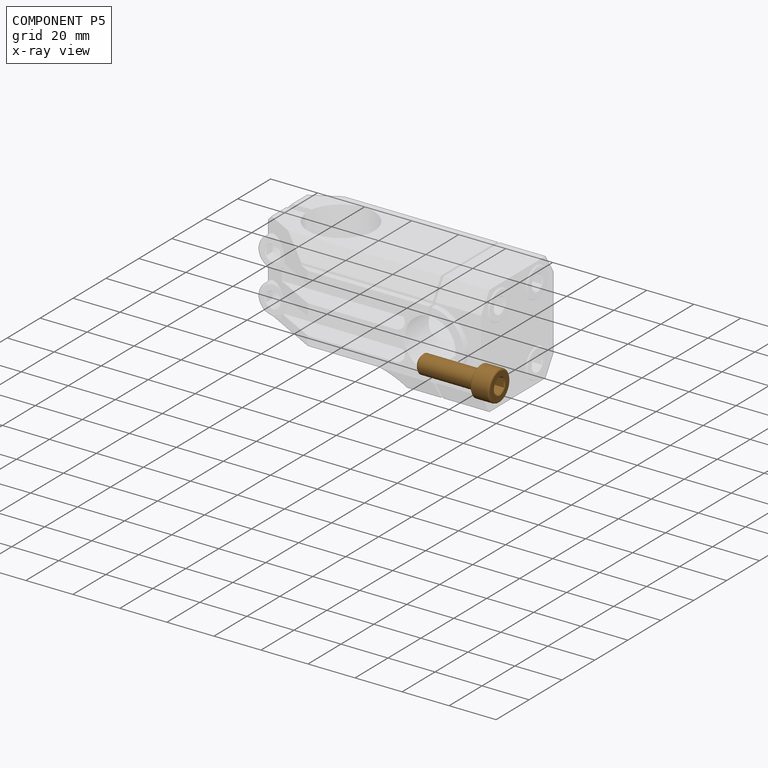
[diagram: component P5 — x-ray view]
COMPONENT P5 — geometry summary ("M8x25-Screw004"; no construction recipe available for this part):
  bounding box: 33.0 x 13.0 x 13.0 mm
  tessellated surface: 15,152 triangles
  volume: 2150 mm^3 (39% of its bounding box)
  symmetry: revolution-symmetric about the x axis through its bounding-box center; mirror-symmetric across its y mid-plane
Held by: FASTENED mate "Joint003" to P6.
PROVENANCE & LICENSES
Assembly and component geometry: a FreeCAD (.FCStd) document from a public repository crawl; components, placements and joints were extracted with FreeCAD and each solid tessellated.
Construction recipes: the document's own serialized feature recipes (and, for linked parts, the recipes of companion documents from the same project).
License: as declared in the source repository (recorded in the dataset sidecar).
Joints: native FreeCAD joints and A2plus constraints are mapped to standard mate types.
Verification: 1 of this assembly's 7 components carries a construction recipe (1 from this document itself); the rest are geometry-only. Every component's tessellation passed the extraction mesh gates (mesh-volume checksum against the B-rep where available, bounding-box inflation <= 2%).
Renders: orthographic iso camera (az 35 / el 25); the floor grid conveys scale (grid pitch printed in each image; no ruler). In the exploded view each component is displaced by its stored offset vector: the offsets alone carry the explosion direction (mate normal/axis signs are not orientation cues and do not encode it), and separation distances are assigned per mate-chain, not proportionally to assembly-order depth.
